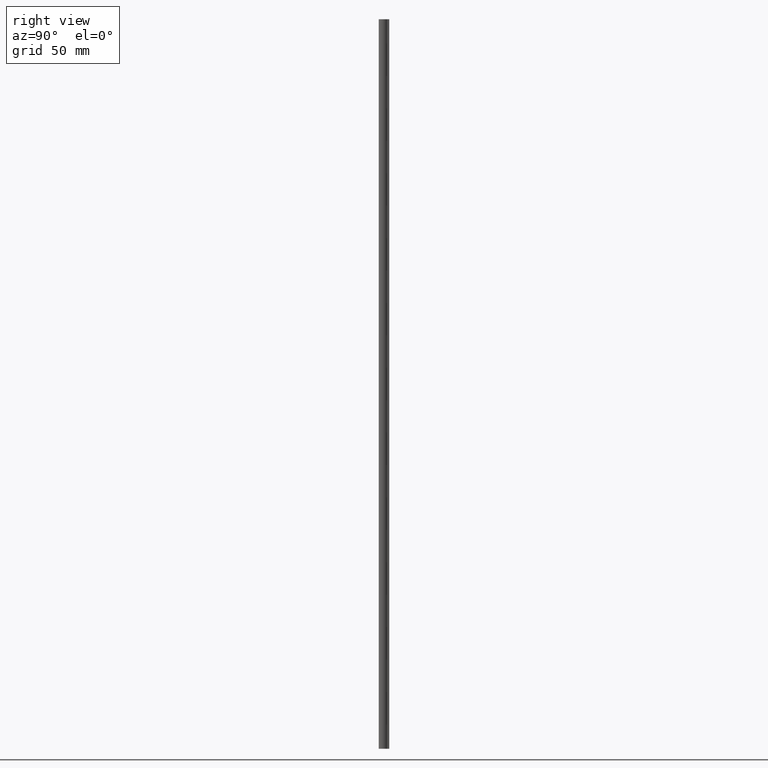
[diagram: clean part render]
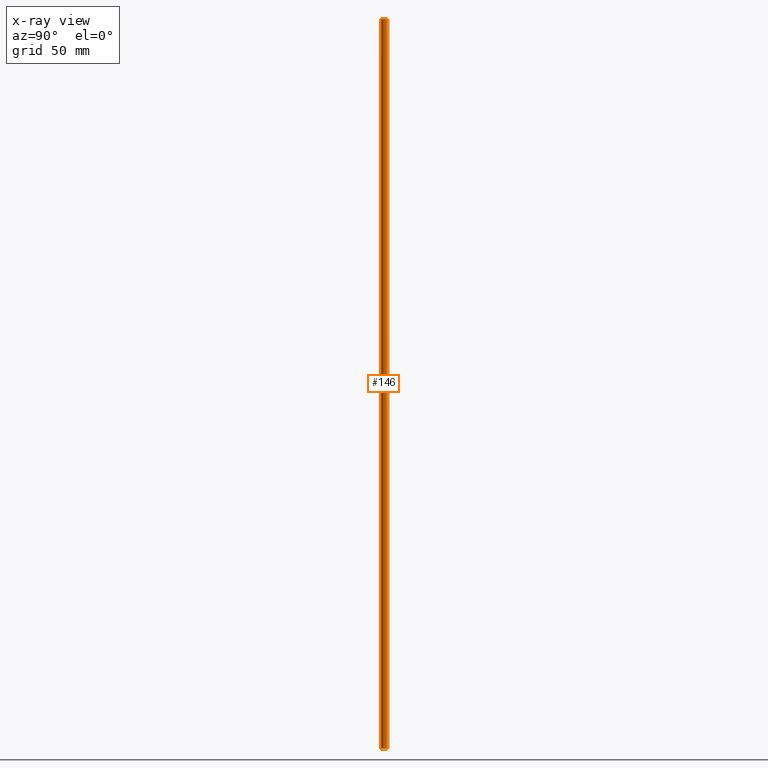
[diagram: x-ray — body ghosted, one internal face saturated and labeled with its STEP entity id]
A machine part, right view, then the same camera in x-ray: the body is ghosted and one INTERNAL B-rep face — a face not visible from any outside direction — is saturated and labeled: STEP entity #146.
In plain terms, the highlighted face is a freeform B-spline surface patch.
Its self-contained STEP definition (entity closure, byte-faithful):
#44=CARTESIAN_POINT('',(0.206559910649327,-1.737766671136416,461.250022550000210));
#45=CARTESIAN_POINT('',(0.156825775116461,-1.743678327035060,461.250022550000100));
#46=CARTESIAN_POINT('',(0.106834944186000,-1.746735897238267,461.250022550000100));
#47=CARTESIAN_POINT('',(-1.639900953052267,-1.853570841424267,461.250022550000150));
#48=CARTESIAN_POINT('',(-1.746735897238267,-0.106834944186000,461.250022550000100));
#49=CARTESIAN_POINT('',(-1.853570841424267,1.639900953052267,461.250022550000150));
#50=CARTESIAN_POINT('',(-0.106834944186000,1.746735897238267,461.250022550000100));
#51=CARTESIAN_POINT('',(0.206559910649327,-1.737766671136416,-11.531250563750010));
#52=CARTESIAN_POINT('',(0.156825775116461,-1.743678327035060,-11.531250563750008));
#53=CARTESIAN_POINT('',(0.106834944186000,-1.746735897238267,-11.531250563750010));
#54=CARTESIAN_POINT('',(-1.639900953052267,-1.853570841424267,-11.531250563750007));
#55=CARTESIAN_POINT('',(-1.746735897238267,-0.106834944186000,-11.531250563750010));
#56=CARTESIAN_POINT('',(-1.853570841424267,1.639900953052267,-11.531250563750007));
#57=CARTESIAN_POINT('',(-0.106834944186000,1.746735897238267,-11.531250563750010));
#65=(BOUNDED_SURFACE()B_SPLINE_SURFACE(2,1,((#44,#51),(#45,#52),(#46,#53),(#47,#54),(#48,#55),(#49,#56),(#50,#57)),.UNSPECIFIED.,.F.,.F.,.U.)B_SPLINE_SURFACE_WITH_KNOTS((3,2,2,3),(2,2),(3.078760800517997,3.141592653589793,4.712388980384690,6.283185307179586),(0.0,472.781273113750220),.UNSPECIFIED.)GEOMETRIC_REPRESENTATION_ITEM()RATIONAL_B_SPLINE_SURFACE(((0.977505800795127,0.977505800795127),(0.988284271247462,0.988284271247462),(1.0,1.0),(0.707106781186548,0.707106781186548),(1.0,1.0),(0.707106781186548,0.707106781186548),(1.0,1.0)))REPRESENTATION_ITEM('')SURFACE());
#66=CARTESIAN_POINT('',(0.206559910782802,-1.737766671120551,-2.362404E-014));
#67=VERTEX_POINT('',#66);
#68=CARTESIAN_POINT('',(-1.750000000000000,0.0,0.0));
#69=VERTEX_POINT('',#68);
#70=CARTESIAN_POINT('',(0.206559910782802,-1.737766671120551,-2.362404E-014));
#71=CARTESIAN_POINT('',(0.103642209525728,-1.750000000000000,0.0));
#72=CARTESIAN_POINT('',(0.0,-1.750000000000000,0.0));
#73=CARTESIAN_POINT('',(-1.750000000000000,-1.750000000000000,0.0));
#74=CARTESIAN_POINT('',(-1.750000000000000,0.0,0.0));
#82=(BOUNDED_CURVE()B_SPLINE_CURVE(2,(#70,#71,#72,#73,#74),.UNSPECIFIED.,.F.,.U.)B_SPLINE_CURVE_WITH_KNOTS((3,2,3),(0.229562473489683,0.250000000000000,0.500000000000000),.UNSPECIFIED.)CURVE()GEOMETRIC_REPRESENTATION_ITEM()RATIONAL_B_SPLINE_CURVE((0.956026754137000,0.976055948303232,1.0,0.707106781186547,1.0))REPRESENTATION_ITEM(''));
#83=EDGE_CURVE('',#67,#69,#82,.T.);
#84=ORIENTED_EDGE('',*,*,#83,.F.);
#85=CARTESIAN_POINT('',(0.206559910782802,-1.737766671120551,450.000022000000000));
#86=VERTEX_POINT('',#85);
#87=CARTESIAN_POINT('',(0.206559910782802,-1.737766671120551,450.000022000000000));
#88=CARTESIAN_POINT('',(0.206559910782802,-1.737766671120551,-2.362404E-014));
#89=QUASI_UNIFORM_CURVE('',1,(#87,#88),.UNSPECIFIED.,.F.,.U.);
#90=EDGE_CURVE('',#86,#67,#89,.T.);
#91=ORIENTED_EDGE('',*,*,#90,.F.);
#92=CARTESIAN_POINT('',(-1.750000000000000,0.0,450.000022000000000));
#93=VERTEX_POINT('',#92);
#94=CARTESIAN_POINT('',(0.206559910782802,-1.737766671120551,450.000022000000000));
#95=CARTESIAN_POINT('',(0.103642209525728,-1.750000000000000,450.000022000000060));
#96=CARTESIAN_POINT('',(0.0,-1.750000000000000,450.000022000000000));
#97=CARTESIAN_POINT('',(-1.750000000000000,-1.750000000000000,450.000021999999940));
#98=CARTESIAN_POINT('',(-1.750000000000000,0.0,450.000022000000000));
#106=(BOUNDED_CURVE()B_SPLINE_CURVE(2,(#94,#95,#96,#97,#98),.UNSPECIFIED.,.F.,.U.)B_SPLINE_CURVE_WITH_KNOTS((3,2,3),(0.229562473489683,0.250000000000000,0.500000000000000),.UNSPECIFIED.)CURVE()GEOMETRIC_REPRESENTATION_ITEM()RATIONAL_B_SPLINE_CURVE((0.956026754137000,0.976055948303232,1.0,0.707106781186547,1.0))REPRESENTATION_ITEM(''));
#107=EDGE_CURVE('',#86,#93,#106,.T.);
#108=ORIENTED_EDGE('',*,*,#107,.T.);
#109=CARTESIAN_POINT('',(-0.106834972126208,1.746735895529370,450.000021999999890));
#110=VERTEX_POINT('',#109);
#111=CARTESIAN_POINT('',(-1.750000000000000,0.0,450.000022000000000));
#112=CARTESIAN_POINT('',(-1.750000000000000,1.646235564321264,450.000022000000060));
#113=CARTESIAN_POINT('',(-0.106834972126208,1.746735895529370,450.000021999999940));
#121=(BOUNDED_CURVE()B_SPLINE_CURVE(2,(#111,#112,#113),.UNSPECIFIED.,.F.,.U.)B_SPLINE_CURVE_WITH_KNOTS((3,3),(0.500000000000000,0.739332956721965),.UNSPECIFIED.)CURVE()GEOMETRIC_REPRESENTATION_ITEM()RATIONAL_B_SPLINE_CURVE((1.0,0.719603999750252,0.976072029842784))REPRESENTATION_ITEM(''));
#122=EDGE_CURVE('',#93,#110,#121,.T.);
#123=ORIENTED_EDGE('',*,*,#122,.T.);
#124=CARTESIAN_POINT('',(-0.106834972126208,1.746735895529370,-2.309264E-014));
#125=VERTEX_POINT('',#124);
#126=CARTESIAN_POINT('',(-0.106834972126208,1.746735895529370,450.000021999999890));
#127=CARTESIAN_POINT('',(-0.106834972126208,1.746735895529370,-2.309264E-014));
#128=QUASI_UNIFORM_CURVE('',1,(#126,#127),.UNSPECIFIED.,.F.,.U.);
#129=EDGE_CURVE('',#110,#125,#128,.T.);
#130=ORIENTED_EDGE('',*,*,#129,.T.);
#131=CARTESIAN_POINT('',(-1.750000000000000,0.0,0.0));
#132=CARTESIAN_POINT('',(-1.750000000000000,1.646235564321264,0.0));
#133=CARTESIAN_POINT('',(-0.106834972126208,1.746735895529370,-2.309264E-014));
#141=(BOUNDED_CURVE()B_SPLINE_CURVE(2,(#131,#132,#133),.UNSPECIFIED.,.F.,.U.)B_SPLINE_CURVE_WITH_KNOTS((3,3),(0.500000000000000,0.739332956721965),.UNSPECIFIED.)CURVE()GEOMETRIC_REPRESENTATION_ITEM()RATIONAL_B_SPLINE_CURVE((1.0,0.719603999750252,0.976072029842784))REPRESENTATION_ITEM(''));
#142=EDGE_CURVE('',#69,#125,#141,.T.);
#143=ORIENTED_EDGE('',*,*,#142,.F.);
#144=EDGE_LOOP('',(#84,#91,#108,#123,#130,#143));
#145=FACE_OUTER_BOUND('',#144,.T.);
#146=ADVANCED_FACE('',(#145),#65,.T.);